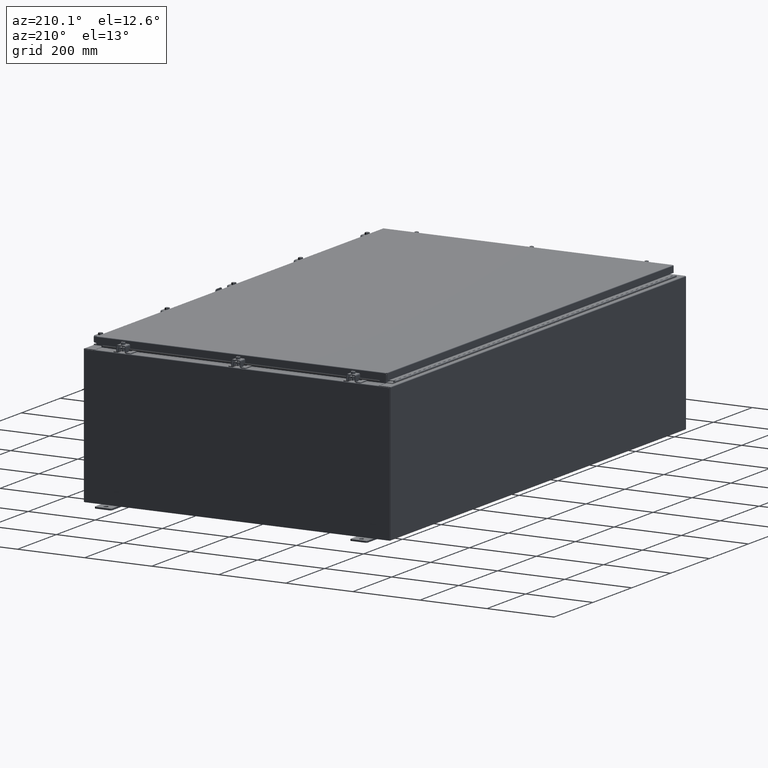
[diagram: clean part render]
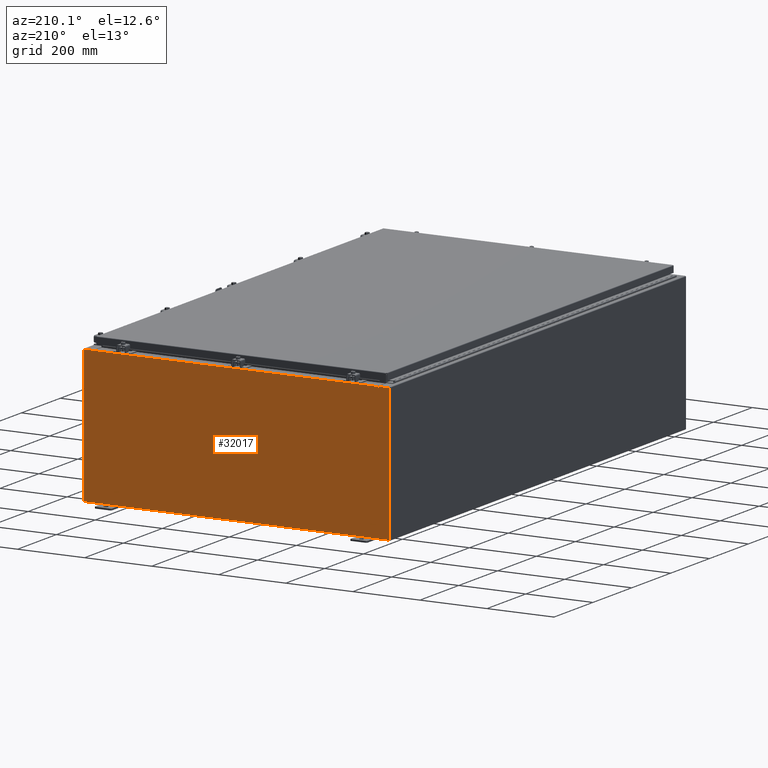
[diagram: same view with one face highlighted and labeled with its STEP entity id]
A machine part, auxiliary view. The second image highlights one B-rep face of the part: STEP entity #32017.
In plain terms, the highlighted planar face has unit normal (0, -1, 0).
Its self-contained STEP definition (entity closure, byte-faithful):
#66 = VERTEX_POINT ( 'NONE', #60140 ) ;
#1967 = VECTOR ( 'NONE', #58533, 39.37007874015748100 ) ;
#3333 = CARTESIAN_POINT ( 'NONE',  ( -17.92530000000000000, 0.0000000000000000000, 7.925300000000001800 ) ) ;
#5336 = FACE_OUTER_BOUND ( 'NONE', #48899, .T. ) ;
#6057 = VERTEX_POINT ( 'NONE', #14225 ) ;
#6123 = EDGE_CURVE ( 'NONE', #48529, #38688, #30837, .T. ) ;
#6166 = ORIENTED_EDGE ( 'NONE', *, *, #42295, .F. ) ;
#6474 = VECTOR ( 'NONE', #33668, 39.37007874015748100 ) ;
#6490 = LINE ( 'NONE', #24193, #56752 ) ;
#6641 = LINE ( 'NONE', #9038, #30995 ) ;
#7270 = CARTESIAN_POINT ( 'NONE',  ( -17.92530000000000000, 0.0000000000000000000, -7.925299999999997300 ) ) ;
#7913 = CIRCLE ( 'NONE', #11691, 0.01867499999999949400 ) ;
#8641 = ORIENTED_EDGE ( 'NONE', *, *, #29408, .F. ) ;
#8795 = CARTESIAN_POINT ( 'NONE',  ( -16.67455000000000000, 0.0000000000000000000, 7.874950000000001900 ) ) ;
#9038 = CARTESIAN_POINT ( 'NONE',  ( 16.63720000000000400, 0.0000000000000000000, 0.0000000000000000000 ) ) ;
#9390 = ORIENTED_EDGE ( 'NONE', *, *, #30025, .T. ) ;
#9496 = VECTOR ( 'NONE', #50864, 39.37007874015748100 ) ;
#10209 = VERTEX_POINT ( 'NONE', #46178 ) ;
#10234 = VECTOR ( 'NONE', #18136, 39.37007874015748100 ) ;
#10932 = DIRECTION ( 'NONE',  ( -0.0000000000000000000, 1.000000000000000000, -0.0000000000000000000 ) ) ;
#11684 = CARTESIAN_POINT ( 'NONE',  ( -17.92530000000000000, 0.0000000000000000000, 7.925300000000001800 ) ) ;
#11691 = AXIS2_PLACEMENT_3D ( 'NONE', #57195, #28021, #62077 ) ;
#12114 = CARTESIAN_POINT ( 'NONE',  ( -16.63720000000000400, -0.0000000000000000000, 0.0000000000000000000 ) ) ;
#12171 = ORIENTED_EDGE ( 'NONE', *, *, #25833, .F. ) ;
#12782 = DIRECTION ( 'NONE',  ( 0.0000000000000000000, 0.0000000000000000000, -1.000000000000000000 ) ) ;
#13299 = CARTESIAN_POINT ( 'NONE',  ( 16.67454999999931800, -0.0000000000000000000, -1.447541957108381700E-012 ) ) ;
#13973 = LINE ( 'NONE', #27517, #48269 ) ;
#14036 = CARTESIAN_POINT ( 'NONE',  ( -17.92530000000000000, 0.0000000000000000000, 7.925300000000001800 ) ) ;
#14071 = DIRECTION ( 'NONE',  ( 0.0000000000000000000, 0.0000000000000000000, 1.000000000000000000 ) ) ;
#14225 = CARTESIAN_POINT ( 'NONE',  ( 17.92530000000000000, 0.0000000000000000000, -7.925299999999997300 ) ) ;
#14858 = DIRECTION ( 'NONE',  ( 0.0000000000000000000, -0.0000000000000000000, -1.000000000000000000 ) ) ;
#15553 = VERTEX_POINT ( 'NONE', #3333 ) ;
#17752 = CARTESIAN_POINT ( 'NONE',  ( -16.63720000000000400, -0.0000000000000000000, 7.874950000000001900 ) ) ;
#18136 = DIRECTION ( 'NONE',  ( -8.681145560800387200E-014, 0.0000000000000000000, -1.000000000000000000 ) ) ;
#18854 = ORIENTED_EDGE ( 'NONE', *, *, #37756, .F. ) ;
#20522 = CARTESIAN_POINT ( 'NONE',  ( 17.92530000000000000, 0.0000000000000000000, 7.925300000000000000 ) ) ;
#21623 = CARTESIAN_POINT ( 'NONE',  ( 16.63720000000000400, 0.0000000000000000000, 7.874950000000001900 ) ) ;
#21693 = LINE ( 'NONE', #11684, #34644 ) ;
#21984 = ORIENTED_EDGE ( 'NONE', *, *, #59189, .F. ) ;
#24193 = CARTESIAN_POINT ( 'NONE',  ( -16.63720000000000400, -2.356218894535426900E-015, 7.912300000000008100 ) ) ;
#24256 = PLANE ( 'NONE',  #60458 ) ;
#24762 = VERTEX_POINT ( 'NONE', #50668 ) ;
#24810 = VERTEX_POINT ( 'NONE', #7270 ) ;
#25833 = EDGE_CURVE ( 'NONE', #66, #59020, #30306, .T. ) ;
#26802 = VERTEX_POINT ( 'NONE', #42288 ) ;
#27517 = CARTESIAN_POINT ( 'NONE',  ( -17.92530000000000000, 0.0000000000000000000, 7.925300000000001800 ) ) ;
#28021 = DIRECTION ( 'NONE',  ( -0.0000000000000000000, 1.000000000000000000, -0.0000000000000000000 ) ) ;
#28584 = ORIENTED_EDGE ( 'NONE', *, *, #56624, .T. ) ;
#29408 = EDGE_CURVE ( 'NONE', #52377, #48529, #7913, .T. ) ;
#29969 = EDGE_CURVE ( 'NONE', #15553, #38688, #13973, .T. ) ;
#30025 = EDGE_CURVE ( 'NONE', #6057, #24810, #45239, .T. ) ;
#30306 = CIRCLE ( 'NONE', #55399, 0.01867499999999949400 ) ;
#30726 = LINE ( 'NONE', #46864, #55113 ) ;
#30837 = LINE ( 'NONE', #53600, #1967 ) ;
#30854 = ORIENTED_EDGE ( 'NONE', *, *, #49386, .T. ) ;
#30995 = VECTOR ( 'NONE', #14071, 39.37007874015748100 ) ;
#31314 = VERTEX_POINT ( 'NONE', #20522 ) ;
#32017 = ADVANCED_FACE ( 'NONE', ( #5336 ), #24256, .F. ) ;
#32277 = VECTOR ( 'NONE', #62003, 39.37007874015748100 ) ;
#32377 = LINE ( 'NONE', #14036, #6474 ) ;
#32869 = CARTESIAN_POINT ( 'NONE',  ( -17.92530000000000000, 0.0000000000000000000, -7.925299999999997300 ) ) ;
#33668 = DIRECTION ( 'NONE',  ( 1.000000000000000000, 0.0000000000000000000, -6.096072018129154100E-017 ) ) ;
#34644 = VECTOR ( 'NONE', #35977, 39.37007874015748100 ) ;
#35977 = DIRECTION ( 'NONE',  ( -0.0000000000000000000, -0.0000000000000000000, 1.000000000000000000 ) ) ;
#37756 = EDGE_CURVE ( 'NONE', #10209, #52377, #46820, .T. ) ;
#38688 = VERTEX_POINT ( 'NONE', #44391 ) ;
#39177 = CARTESIAN_POINT ( 'NONE',  ( 0.0000000000000000000, 0.0000000000000000000, 0.0000000000000000000 ) ) ;
#40106 = CARTESIAN_POINT ( 'NONE',  ( 16.65587500000000200, 0.0000000000000000000, 7.874950000000001900 ) ) ;
#42288 = CARTESIAN_POINT ( 'NONE',  ( 16.67455000000000700, 0.0000000000000000000, 7.925300000000000000 ) ) ;
#42295 = EDGE_CURVE ( 'NONE', #59020, #24762, #6641, .T. ) ;
#44068 = DIRECTION ( 'NONE',  ( 0.0000000000000000000, -1.000000000000000000, 0.0000000000000000000 ) ) ;
#44391 = CARTESIAN_POINT ( 'NONE',  ( -16.67455000000000000, 0.0000000000000000000, 7.925300000000001800 ) ) ;
#45029 = DIRECTION ( 'NONE',  ( 0.0000000000000000000, 0.0000000000000000000, -1.000000000000000000 ) ) ;
#45239 = LINE ( 'NONE', #32869, #32277 ) ;
#46178 = CARTESIAN_POINT ( 'NONE',  ( -16.63720000000000400, -2.356218894535426900E-015, 7.912300000000008100 ) ) ;
#46820 = LINE ( 'NONE', #12114, #9496 ) ;
#46864 = CARTESIAN_POINT ( 'NONE',  ( 17.92530000000000000, 0.0000000000000000000, 7.925300000000000000 ) ) ;
#46906 = ORIENTED_EDGE ( 'NONE', *, *, #29969, .T. ) ;
#46921 = DIRECTION ( 'NONE',  ( 1.000000000000000000, 0.0000000000000000000, -6.096072018129154100E-017 ) ) ;
#48269 = VECTOR ( 'NONE', #46921, 39.37007874015748100 ) ;
#48529 = VERTEX_POINT ( 'NONE', #8795 ) ;
#48633 = EDGE_CURVE ( 'NONE', #26802, #31314, #32377, .T. ) ;
#48899 = EDGE_LOOP ( 'NONE', ( #50526, #8641, #18854, #30854, #6166, #12171, #21984, #56975, #62508, #9390, #28584, #46906 ) ) ;
#49075 = LINE ( 'NONE', #13299, #10234 ) ;
#49386 = EDGE_CURVE ( 'NONE', #10209, #24762, #6490, .T. ) ;
#50447 = EDGE_CURVE ( 'NONE', #31314, #6057, #30726, .T. ) ;
#50526 = ORIENTED_EDGE ( 'NONE', *, *, #6123, .F. ) ;
#50668 = CARTESIAN_POINT ( 'NONE',  ( 16.63720000000000400, 0.0000000000000000000, 7.912300000000001900 ) ) ;
#50864 = DIRECTION ( 'NONE',  ( 0.0000000000000000000, 0.0000000000000000000, -1.000000000000000000 ) ) ;
#52377 = VERTEX_POINT ( 'NONE', #17752 ) ;
#53600 = CARTESIAN_POINT ( 'NONE',  ( -16.67455000000000000, -0.0000000000000000000, 0.0000000000000000000 ) ) ;
#55113 = VECTOR ( 'NONE', #12782, 39.37007874015748100 ) ;
#55399 = AXIS2_PLACEMENT_3D ( 'NONE', #40106, #10932, #45029 ) ;
#56624 = EDGE_CURVE ( 'NONE', #24810, #15553, #21693, .T. ) ;
#56752 = VECTOR ( 'NONE', #58268, 39.37007874015748100 ) ;
#56975 = ORIENTED_EDGE ( 'NONE', *, *, #48633, .T. ) ;
#57195 = CARTESIAN_POINT ( 'NONE',  ( -16.65587500000000200, 0.0000000000000000000, 7.874950000000001900 ) ) ;
#58268 = DIRECTION ( 'NONE',  ( 1.000000000000000000, 0.0000000000000000000, 0.0000000000000000000 ) ) ;
#58533 = DIRECTION ( 'NONE',  ( 0.0000000000000000000, 0.0000000000000000000, 1.000000000000000000 ) ) ;
#59020 = VERTEX_POINT ( 'NONE', #21623 ) ;
#59189 = EDGE_CURVE ( 'NONE', #26802, #66, #49075, .T. ) ;
#60140 = CARTESIAN_POINT ( 'NONE',  ( 16.67455000000000000, 0.0000000000000000000, 7.874950000000001900 ) ) ;
#60458 = AXIS2_PLACEMENT_3D ( 'NONE', #39177, #44068, #14858 ) ;
#62003 = DIRECTION ( 'NONE',  ( -1.000000000000000000, -0.0000000000000000000, -0.0000000000000000000 ) ) ;
#62077 = DIRECTION ( 'NONE',  ( 0.0000000000000000000, 0.0000000000000000000, -1.000000000000000000 ) ) ;
#62508 = ORIENTED_EDGE ( 'NONE', *, *, #50447, .T. ) ;